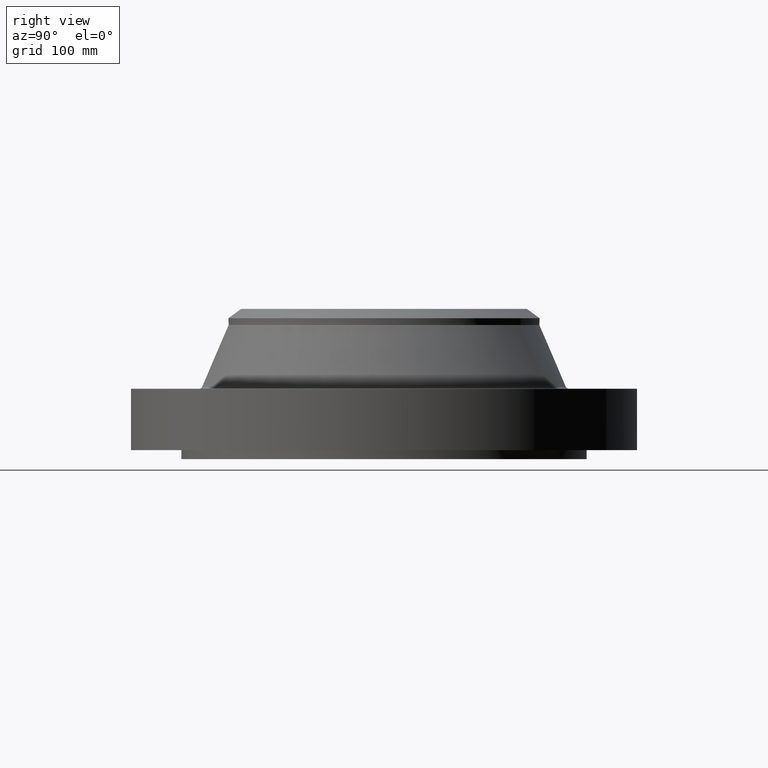
[diagram: clean part render]
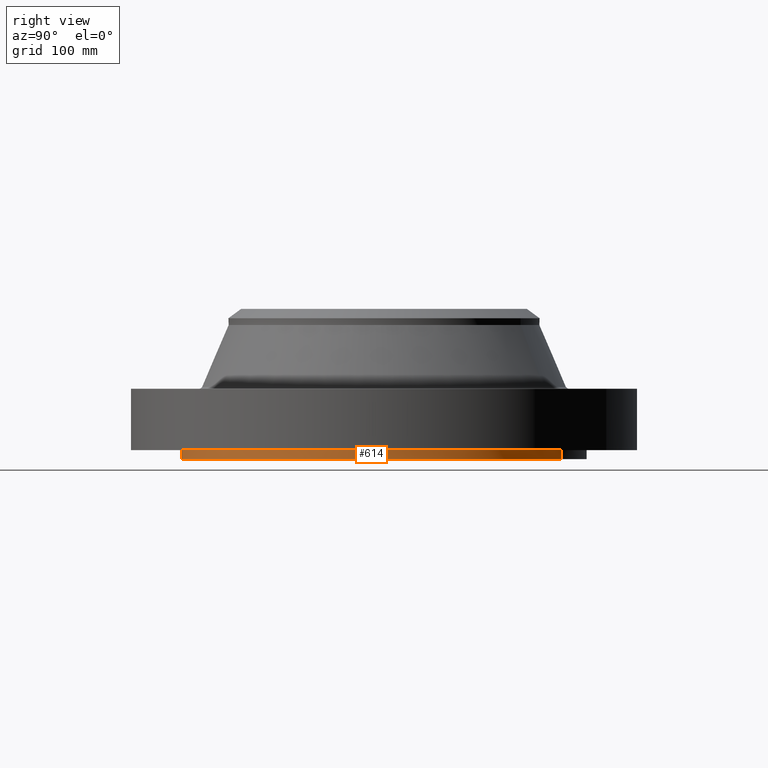
[diagram: same view with one face highlighted and labeled with its STEP entity id]
A machine part, right view. The second image highlights one B-rep face of the part: STEP entity #614.
In plain terms, the highlighted cylindrical surface (partial cylindrical patch) has radius 177.8 mm, axis along (0, 0, -1).
Its self-contained STEP definition (entity closure, byte-faithful):
#435=AXIS2_PLACEMENT_3D('Cylinder Axis2P3D',#432,#433,#434) ;
#536=AXIS2_PLACEMENT_3D('Circle Axis2P3D',#534,#535,$) ;
#541=AXIS2_PLACEMENT_3D('Circle Axis2P3D',#539,#540,$) ;
#548=AXIS2_PLACEMENT_3D('Circle Axis2P3D',#546,#547,$) ;
#555=AXIS2_PLACEMENT_3D('Circle Axis2P3D',#553,#554,$) ;
#562=AXIS2_PLACEMENT_3D('Circle Axis2P3D',#560,#561,$) ;
#569=AXIS2_PLACEMENT_3D('Circle Axis2P3D',#567,#568,$) ;
#576=AXIS2_PLACEMENT_3D('Circle Axis2P3D',#574,#575,$) ;
#583=AXIS2_PLACEMENT_3D('Circle Axis2P3D',#581,#582,$) ;
#590=AXIS2_PLACEMENT_3D('Circle Axis2P3D',#588,#589,$) ;
#597=AXIS2_PLACEMENT_3D('Circle Axis2P3D',#595,#596,$) ;
#432=CARTESIAN_POINT('Axis2P3D Location',(0.,0.,2.28350000001)) ;
#441=CARTESIAN_POINT('Vertex',(-3.35597877024,-6.14307793326,-0.313000000001)) ;
#443=CARTESIAN_POINT('Vertex',(3.35597877024,6.14307793326,-0.313000000001)) ;
#446=CARTESIAN_POINT('Line Origine',(-3.35597877024,-6.14307793326,-0.156500000001)) ;
#450=CARTESIAN_POINT('Vertex',(-3.35597877024,-6.14307793326,8.39223703654E-016)) ;
#511=CARTESIAN_POINT('Vertex',(3.35597877024,6.14307793326,8.39223703654E-016)) ;
#514=CARTESIAN_POINT('Line Origine',(3.35597877024,6.14307793326,-0.156500000001)) ;
#534=CARTESIAN_POINT('Axis2P3D Location',(0.,0.,-0.313000000001)) ;
#539=CARTESIAN_POINT('Axis2P3D Location',(0.,0.,8.39223703654E-016)) ;
#543=CARTESIAN_POINT('Vertex',(4.94974746833,4.94974746833,0.)) ;
#546=CARTESIAN_POINT('Axis2P3D Location',(0.,0.,8.39223703654E-016)) ;
#550=CARTESIAN_POINT('Vertex',(6.4671567276,2.67878402657,0.)) ;
#553=CARTESIAN_POINT('Axis2P3D Location',(0.,0.,8.39223703654E-016)) ;
#557=CARTESIAN_POINT('Vertex',(7.00000000003,1.1189649382E-015,0.)) ;
#560=CARTESIAN_POINT('Axis2P3D Location',(0.,0.,8.39223703654E-016)) ;
#564=CARTESIAN_POINT('Vertex',(6.4671567276,-2.67878402657,0.)) ;
#567=CARTESIAN_POINT('Axis2P3D Location',(0.,0.,8.39223703654E-016)) ;
#571=CARTESIAN_POINT('Vertex',(4.94974746833,-4.94974746833,0.)) ;
#574=CARTESIAN_POINT('Axis2P3D Location',(0.,0.,8.39223703654E-016)) ;
#578=CARTESIAN_POINT('Vertex',(2.67878402657,-6.4671567276,0.)) ;
#581=CARTESIAN_POINT('Axis2P3D Location',(0.,0.,8.39223703654E-016)) ;
#585=CARTESIAN_POINT('Vertex',(1.14402491806E-015,-7.00000000003,0.)) ;
#588=CARTESIAN_POINT('Axis2P3D Location',(0.,0.,8.39223703654E-016)) ;
#592=CARTESIAN_POINT('Vertex',(-2.67878402657,-6.4671567276,0.)) ;
#595=CARTESIAN_POINT('Axis2P3D Location',(0.,0.,8.39223703654E-016)) ;
#433=DIRECTION('Axis2P3D Direction',(0.,0.,-0.0393700787402)) ;
#434=DIRECTION('Axis2P3D XDirection',(0.0188750212049,0.0345504945626,0.)) ;
#447=DIRECTION('Vector Direction',(0.,0.,-0.0393700787402)) ;
#515=DIRECTION('Vector Direction',(0.,0.,-0.0393700787402)) ;
#535=DIRECTION('Axis2P3D Direction',(0.,0.,-0.0393700787402)) ;
#540=DIRECTION('Axis2P3D Direction',(0.,0.,-0.0393700787402)) ;
#547=DIRECTION('Axis2P3D Direction',(0.,0.,-0.0393700787402)) ;
#554=DIRECTION('Axis2P3D Direction',(0.,0.,-0.0393700787402)) ;
#561=DIRECTION('Axis2P3D Direction',(0.,0.,-0.0393700787402)) ;
#568=DIRECTION('Axis2P3D Direction',(0.,0.,-0.0393700787402)) ;
#575=DIRECTION('Axis2P3D Direction',(0.,0.,-0.0393700787402)) ;
#582=DIRECTION('Axis2P3D Direction',(0.,0.,-0.0393700787402)) ;
#589=DIRECTION('Axis2P3D Direction',(0.,0.,-0.0393700787402)) ;
#596=DIRECTION('Axis2P3D Direction',(0.,0.,-0.0393700787402)) ;
#448=VECTOR('Line Direction',#447,0.0393700787402) ;
#516=VECTOR('Line Direction',#515,0.0393700787402) ;
#601=ORIENTED_EDGE('',*,*,#538,.F.) ;
#602=ORIENTED_EDGE('',*,*,#518,.T.) ;
#603=ORIENTED_EDGE('',*,*,#545,.T.) ;
#604=ORIENTED_EDGE('',*,*,#552,.T.) ;
#605=ORIENTED_EDGE('',*,*,#559,.T.) ;
#606=ORIENTED_EDGE('',*,*,#566,.T.) ;
#607=ORIENTED_EDGE('',*,*,#573,.T.) ;
#608=ORIENTED_EDGE('',*,*,#580,.T.) ;
#609=ORIENTED_EDGE('',*,*,#587,.T.) ;
#610=ORIENTED_EDGE('',*,*,#594,.T.) ;
#611=ORIENTED_EDGE('',*,*,#599,.T.) ;
#612=ORIENTED_EDGE('',*,*,#452,.F.) ;
#614=ADVANCED_FACE('PartBody',(#613),#436,.T.) ;
#537=CIRCLE('generated circle',#536,7.00000000003) ;
#542=CIRCLE('generated circle',#541,7.00000000003) ;
#549=CIRCLE('generated circle',#548,7.00000000003) ;
#556=CIRCLE('generated circle',#555,7.00000000003) ;
#563=CIRCLE('generated circle',#562,7.00000000003) ;
#570=CIRCLE('generated circle',#569,7.00000000003) ;
#577=CIRCLE('generated circle',#576,7.00000000003) ;
#584=CIRCLE('generated circle',#583,7.00000000003) ;
#591=CIRCLE('generated circle',#590,7.00000000003) ;
#598=CIRCLE('generated circle',#597,7.00000000003) ;
#436=CYLINDRICAL_SURFACE('generated cylinder',#435,7.00000000003) ;
#452=EDGE_CURVE('',#442,#451,#449,.F.) ;
#518=EDGE_CURVE('',#444,#512,#517,.F.) ;
#538=EDGE_CURVE('',#444,#442,#537,.T.) ;
#545=EDGE_CURVE('',#512,#544,#542,.T.) ;
#552=EDGE_CURVE('',#544,#551,#549,.T.) ;
#559=EDGE_CURVE('',#551,#558,#556,.T.) ;
#566=EDGE_CURVE('',#558,#565,#563,.T.) ;
#573=EDGE_CURVE('',#565,#572,#570,.T.) ;
#580=EDGE_CURVE('',#572,#579,#577,.T.) ;
#587=EDGE_CURVE('',#579,#586,#584,.T.) ;
#594=EDGE_CURVE('',#586,#593,#591,.T.) ;
#599=EDGE_CURVE('',#593,#451,#598,.T.) ;
#600=EDGE_LOOP('',(#601,#602,#603,#604,#605,#606,#607,#608,#609,#610,#611,#612)) ;
#613=FACE_OUTER_BOUND('',#600,.T.) ;
#449=LINE('Line',#446,#448) ;
#517=LINE('Line',#514,#516) ;
#442=VERTEX_POINT('',#441) ;
#444=VERTEX_POINT('',#443) ;
#451=VERTEX_POINT('',#450) ;
#512=VERTEX_POINT('',#511) ;
#544=VERTEX_POINT('',#543) ;
#551=VERTEX_POINT('',#550) ;
#558=VERTEX_POINT('',#557) ;
#565=VERTEX_POINT('',#564) ;
#572=VERTEX_POINT('',#571) ;
#579=VERTEX_POINT('',#578) ;
#586=VERTEX_POINT('',#585) ;
#593=VERTEX_POINT('',#592) ;